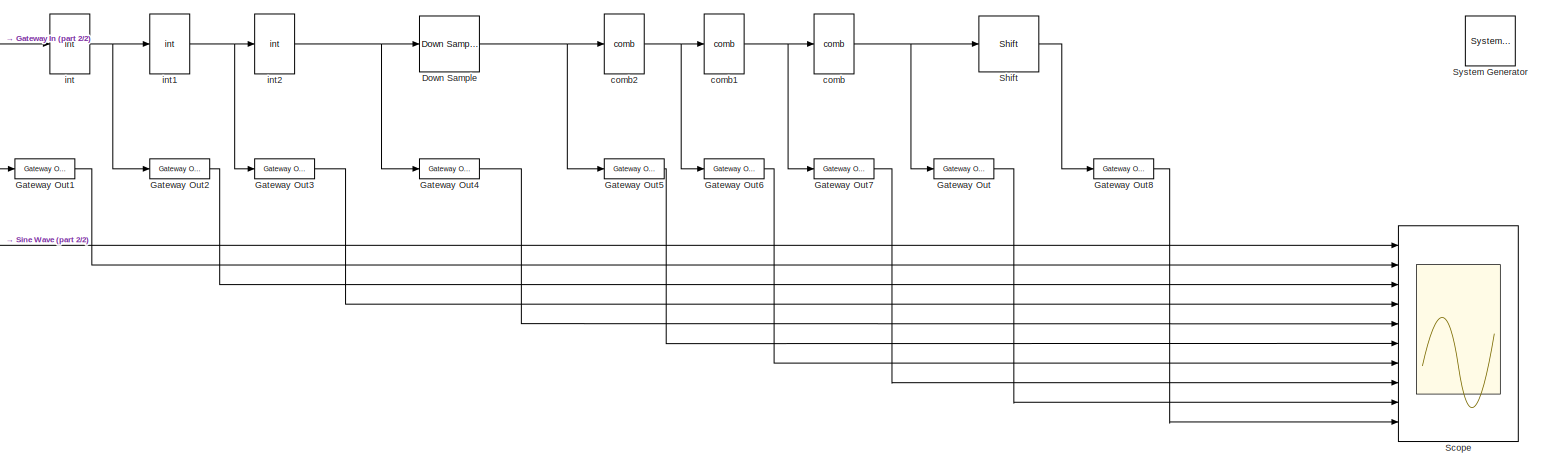
[diagram: root canvas - part 1/2, most of the canvas]
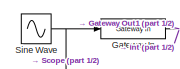
[diagram: root canvas - part 2/2, top left region]
MODEL slx_fb6e8ed32724
KIND model
CONFIG AbsTol = auto
CONFIG FixedStep = auto
CONFIG MaxStep = auto
CONFIG MinStep = auto
CONFIG RelTol = 1e-3
CONFIG SampleTimeConstraint = Unconstrained
CONFIG Solver = VariableStepAuto
CONFIG SolverMode = Auto
CONFIG SolverName = VariableStepAuto
CONFIG StartTime = 0.0
CONFIG StopTime = 1e-3
BLOCK [Reference]  System Generator  REF=xbsIndex_r4/ System Generator
  AttributesFormatString = System\nGenerator
  Ports = []
  SourceBlock = xbsIndex_r4/ System Generator
  SourceType = Xilinx System Generator Block
  Tag = genX
  UserDataPersistent = on
BLOCK [Reference] Down Sample  REF=xbsIndex_r4/Down Sample
  Ports = [1, 1]
  SourceBlock = xbsIndex_r4/Down Sample
  SourceType = Xilinx Down Sampler Block
BLOCK [Reference] Gateway In  REF=xbsIndex_r4/Gateway In
  Ports = [1, 1]
  SourceBlock = xbsIndex_r4/Gateway In
  SourceType = Xilinx Gateway In Block
BLOCK [Reference] Gateway Out  REF=xbsIndex_r4/Gateway Out
  Ports = [1, 1]
  SourceBlock = xbsIndex_r4/Gateway Out
  SourceType = Xilinx Gateway Out Block
BLOCK [Reference] Gateway Out1  REF=xbsIndex_r4/Gateway Out
  Ports = [1, 1]
  SourceBlock = xbsIndex_r4/Gateway Out
  SourceType = Xilinx Gateway Out Block
BLOCK [Reference] Gateway Out2  REF=xbsIndex_r4/Gateway Out
  Ports = [1, 1]
  SourceBlock = xbsIndex_r4/Gateway Out
  SourceType = Xilinx Gateway Out Block
BLOCK [Reference] Gateway Out3  REF=xbsIndex_r4/Gateway Out
  Ports = [1, 1]
  SourceBlock = xbsIndex_r4/Gateway Out
  SourceType = Xilinx Gateway Out Block
BLOCK [Reference] Gateway Out4  REF=xbsIndex_r4/Gateway Out
  Ports = [1, 1]
  SourceBlock = xbsIndex_r4/Gateway Out
  SourceType = Xilinx Gateway Out Block
BLOCK [Reference] Gateway Out5  REF=xbsIndex_r4/Gateway Out
  Ports = [1, 1]
  SourceBlock = xbsIndex_r4/Gateway Out
  SourceType = Xilinx Gateway Out Block
BLOCK [Reference] Gateway Out6  REF=xbsIndex_r4/Gateway Out
  Ports = [1, 1]
  SourceBlock = xbsIndex_r4/Gateway Out
  SourceType = Xilinx Gateway Out Block
BLOCK [Reference] Gateway Out7  REF=xbsIndex_r4/Gateway Out
  Ports = [1, 1]
  SourceBlock = xbsIndex_r4/Gateway Out
  SourceType = Xilinx Gateway Out Block
BLOCK [Reference] Gateway Out8  REF=xbsIndex_r4/Gateway Out
  Ports = [1, 1]
  SourceBlock = xbsIndex_r4/Gateway Out
  SourceType = Xilinx Gateway Out Block
BLOCK [Scope] Scope
  NumInputPorts = 10
  Ports = [10]
  ScopeSpecificationString = Simulink.scopes.TimeScopeBlockCfg('CurrentConfiguration', extmgr.ConfigurationSet(extmgr.Configuration('Core','General UI',true),extmgr.Configuration('Core','Source UI',true),extmgr.Configuration('Sources','WiredSimulink',true),extmgr.Configuration('Visuals','Time Domain',true,'SerializedDisplays',{struct('MinYLimReal','-5120.00000','MaxYLimReal','5120.00000','YLabelReal','','MinYLimMag','  0.0000...<+7876ch>
BLOCK [Reference] Shift  REF=xbsIndex_r4/Shift
  Ports = [1, 1]
  SourceBlock = xbsIndex_r4/Shift
  SourceType = Xilinx Binary Shift Operator Block
BLOCK [Sin] Sine Wave
  Amplitude = 2^12
  Frequency = 2*pi*1e3
  Ports = [0, 1]
  SampleTime = 0
  Samples = 100
BLOCK [Reference] comb  REF=components/comb  (lib defined in mdl_a1687a45b1b8, slx_3ba160831d4c, +1 more)
  Ports = [1, 1]
  SourceBlock = components/comb
  SourceType = SubSystem
BLOCK [Reference] comb1  REF=components/comb  (lib defined in mdl_a1687a45b1b8, slx_3ba160831d4c, +1 more)
  Ports = [1, 1]
  SourceBlock = components/comb
  SourceType = SubSystem
BLOCK [Reference] comb2  REF=components/comb  (lib defined in mdl_a1687a45b1b8, slx_3ba160831d4c, +1 more)
  Ports = [1, 1]
  SourceBlock = components/comb
  SourceType = SubSystem
BLOCK [Reference] int  REF=components/int  (lib defined in mdl_a1687a45b1b8, slx_3ba160831d4c, +1 more)
  Ports = [1, 1]
  SourceBlock = components/int
  SourceType = SubSystem
BLOCK [Reference] int1  REF=components/int  (lib defined in mdl_a1687a45b1b8, slx_3ba160831d4c, +1 more)
  Ports = [1, 1]
  SourceBlock = components/int
  SourceType = SubSystem
BLOCK [Reference] int2  REF=components/int  (lib defined in mdl_a1687a45b1b8, slx_3ba160831d4c, +1 more)
  Ports = [1, 1]
  SourceBlock = components/int
  SourceType = SubSystem
NET Down Sample:1 -> Gateway Out5:1, comb2:1
NET Gateway In:1 -> Gateway Out1:1, int:1
LINE Gateway Out1:1 -> Scope:2
LINE Gateway Out2:1 -> Scope:3
LINE Gateway Out3:1 -> Scope:4
LINE Gateway Out4:1 -> Scope:5
LINE Gateway Out5:1 -> Scope:6
LINE Gateway Out6:1 -> Scope:7
LINE Gateway Out7:1 -> Scope:8
LINE Gateway Out8:1 -> Scope:10
LINE Gateway Out:1 -> Scope:9
LINE Shift:1 -> Gateway Out8:1
NET Sine Wave:1 -> Gateway In:1, Scope:1
NET comb1:1 -> Gateway Out7:1, comb:1
NET comb2:1 -> Gateway Out6:1, comb1:1
NET comb:1 -> Gateway Out:1, Shift:1
NET int1:1 -> Gateway Out3:1, int2:1
NET int2:1 -> Down Sample:1, Gateway Out4:1
NET int:1 -> Gateway Out2:1, int1:1
note: NET lines group one-source signal fan-out (src -> all destinations, sorted); 1:1 wires keep LINE
